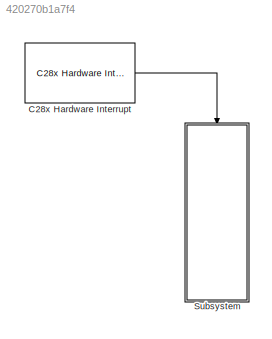
MODEL slx_420270b1a7f4
KIND model
CONFIG AbsTol = auto
CONFIG EnableMultiTasking = on
CONFIG FixedStep = 1e-7
CONFIG MaxStep = auto
CONFIG MinStep = auto
CONFIG RelTol = 1e-3
CONFIG SampleTimeConstraint = Unconstrained
CONFIG Solver = FixedStepDiscrete
CONFIG SolverName = FixedStepDiscrete
CONFIG StartTime = 0.0
CONFIG StopTime = 10
BLOCK [Reference] C28x Hardware Interrupt  REF=c2000lib/Scheduling/C28x Hardware Interrupt
  Ports = [0, 1]
  SourceBlock = c2000lib/Scheduling/C28x Hardware Interrupt
  SourceProductBaseCode = TIC2000
  SourceProductName = Embedded Coder Support Package for Texas Instruments C2000 Processors
  SourceType = C28x Interrupt Block
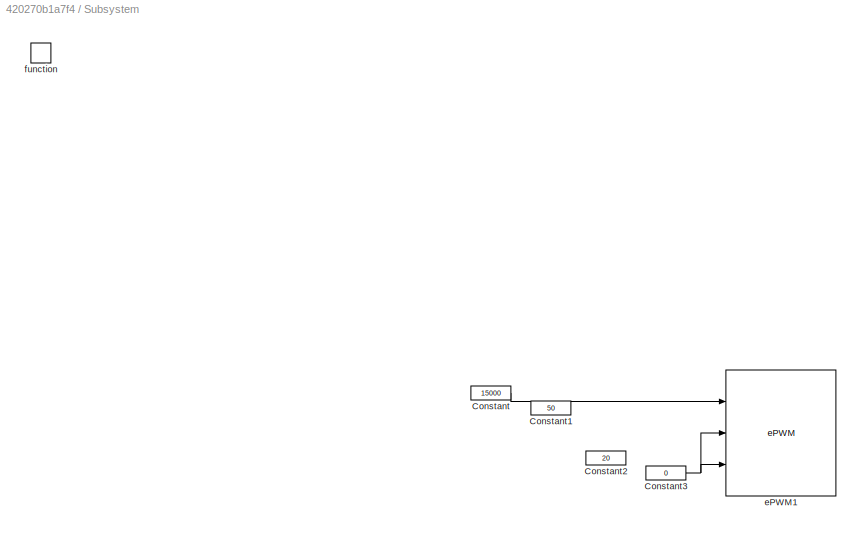
BLOCK [SubSystem] Subsystem
  Ports = [0, 0, 0, 1]
  RequestExecContextInheritance = off
BLOCK [Constant] Subsystem/Constant
  OutDataTypeStr = fixdt(1,32,16)
  Value = 15000
  VectorParams1D = off
BLOCK [Constant] Subsystem/Constant1
  OutDataTypeStr = fixdt(1,32,16)
  Value = 50
  VectorParams1D = off
BLOCK [Constant] Subsystem/Constant2
  OutDataTypeStr = fixdt(1,32,16)
  Value = 20
  VectorParams1D = off
BLOCK [Constant] Subsystem/Constant3
  OutDataTypeStr = int16
  Value = 0
  VectorParams1D = off
BLOCK [Reference] Subsystem/ePWM1  REF=c2802xlib/ePWM
  Ports = [3]
  SourceBlock = c2802xlib/ePWM
  SourceProductBaseCode = TIC2000
  SourceProductName = Embedded Coder Support Package for Texas Instruments C2000 Processors
  SourceType = C2802x/03x/05x/06x/M3x/37x/07x/004x ePWM
  UserDataPersistent = on
BLOCK [TriggerPort] Subsystem/function
  Ports = []
  SampleTime = 1e-6
  StatesWhenEnabling = held
  TriggerType = function-call
  VariantControl = (inherit)
LINE C28x Hardware Interrupt:1 -> Subsystem:trigger
NET Subsystem/Constant3:1 -> Subsystem/ePWM1:2, Subsystem/ePWM1:3
LINE Subsystem/Constant:1 -> Subsystem/ePWM1:1
note: NET lines group one-source signal fan-out (src -> all destinations, sorted); 1:1 wires keep LINE
